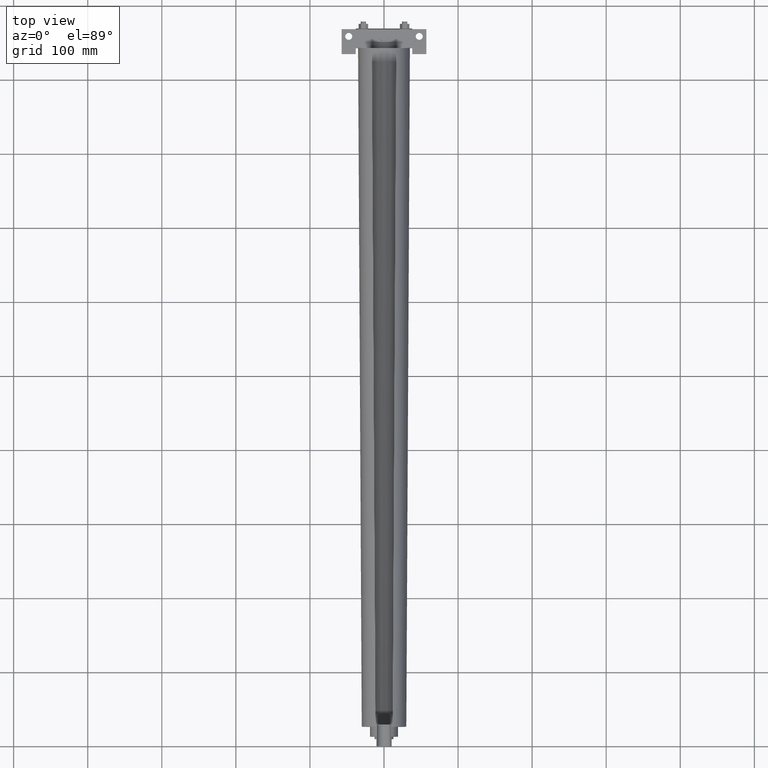
[diagram: clean part render]
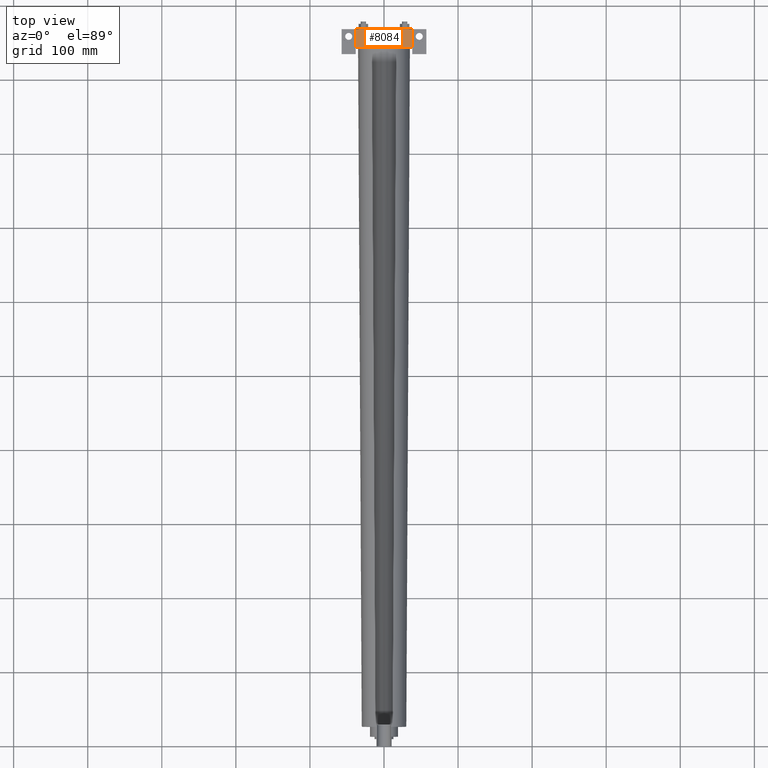
[diagram: same view with one face highlighted and labeled with its STEP entity id]
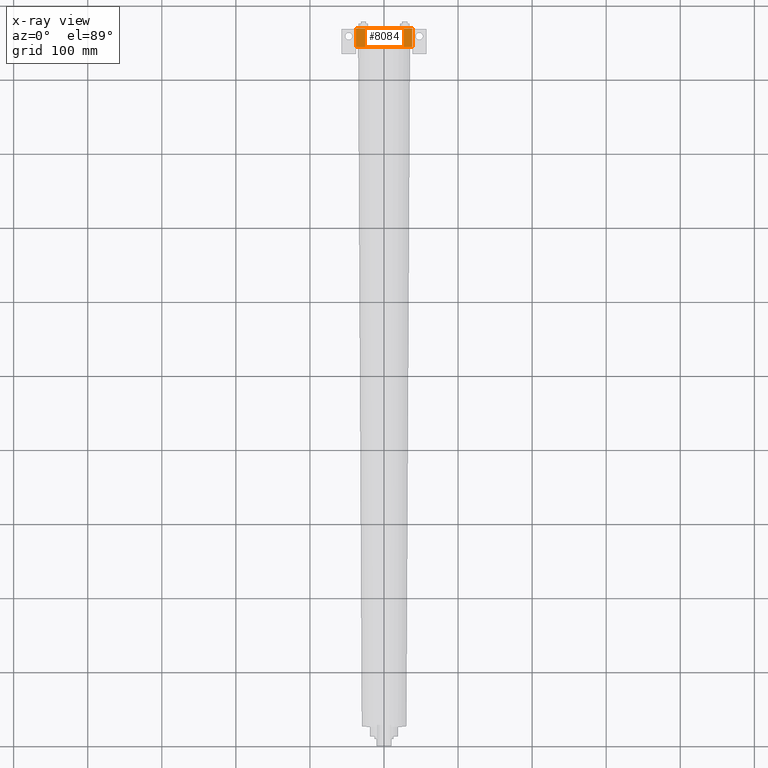
[diagram: x-ray of the same camera — body ghosted, the highlighted face saturated]
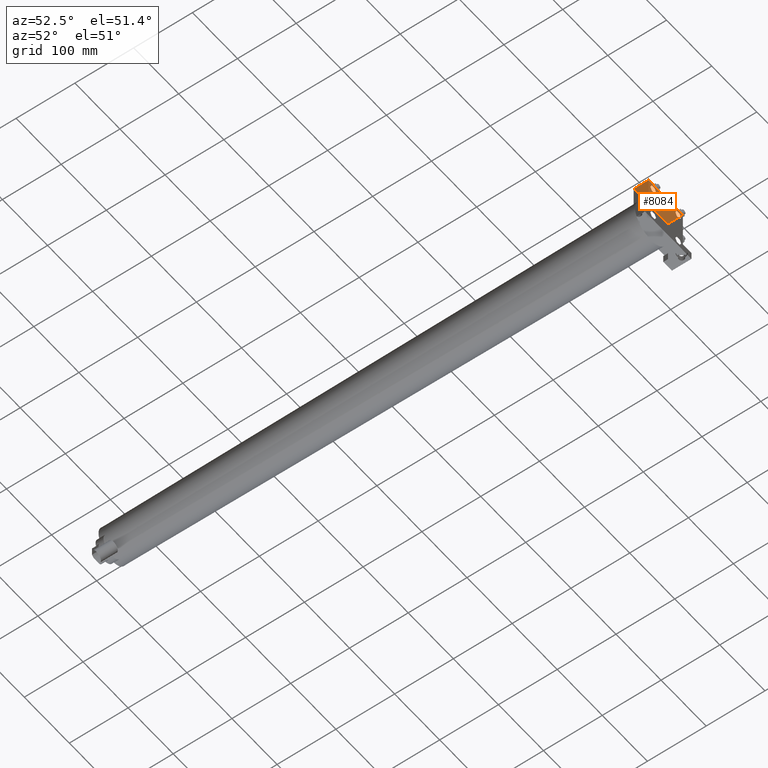
[diagram: same view with one face highlighted and labeled with its STEP entity id]
A machine part, top view. The second image highlights one B-rep face of the part: STEP entity #8084.
The next image is the same camera in x-ray: the body ghosted, the highlighted face saturated — about 0% of this face is hidden behind the body in this view.
A second angle (auxiliary view) of the same face is appended — the face is thin or edge-on in the first view.
In plain terms, the highlighted planar face has unit normal (0, 0, 1).
Its self-contained STEP definition (entity closure, byte-faithful):
#2653=EDGE_CURVE('',#2659,#2659,#2654,.T.);
#2654=CIRCLE('',#2655,6.350000000E+000);
#2655=AXIS2_PLACEMENT_3D('',#2656,#2657,#2658);
#2656=CARTESIAN_POINT('',(0.000000000E+000,9.572625000E+002,3.810000000E+001));
#2657=DIRECTION('',(0.0E+000,0.0E+000,-1.0E+000));
#2658=DIRECTION('',(-1.0E+000,0.0E+000,0.0E+000));
#2659=VERTEX_POINT('',#2660);
#2660=CARTESIAN_POINT('',(-6.350000000E+000,9.572625000E+002,3.810000000E+001));
#3125=VERTEX_POINT('',#3126);
#3126=CARTESIAN_POINT('',(-3.810000000E+001,9.683750000E+002,3.810000000E+001));
#3127=EDGE_CURVE('',#3132,#3125,#3128,.T.);
#3128=LINE('',#3129,#3130);
#3129=CARTESIAN_POINT('',(3.810000000E+001,9.683750000E+002,3.810000000E+001));
#3130=VECTOR('',#3131,1.0E+000);
#3131=DIRECTION('',(-1.0E+000,0.0E+000,0.0E+000));
#3132=VERTEX_POINT('',#3133);
#3133=CARTESIAN_POINT('',(3.810000000E+001,9.683750000E+002,3.810000000E+001));
#3144=FACE_OUTER_BOUND('',#3146,.T.);
#3145=FACE_BOUND('',#3147,.T.);
#3146=EDGE_LOOP('',(#3148));
#3147=EDGE_LOOP('',(#3149,#3150,#3151,#3152));
#3148=ORIENTED_EDGE('',*,*,#2653,.T.);
#3149=ORIENTED_EDGE('',*,*,#3153,.T.);
#3150=ORIENTED_EDGE('',*,*,#3160,.F.);
#3151=ORIENTED_EDGE('',*,*,#3167,.F.);
#3152=ORIENTED_EDGE('',*,*,#3127,.T.);
#3153=EDGE_CURVE('',#3125,#3158,#3154,.T.);
#3154=LINE('',#3155,#3156);
#3155=CARTESIAN_POINT('',(-3.810000000E+001,9.683750000E+002,3.810000000E+001));
#3156=VECTOR('',#3157,1.0E+000);
#3157=DIRECTION('',(0.0E+000,-1.0E+000,0.0E+000));
#3158=VERTEX_POINT('',#3159);
#3159=CARTESIAN_POINT('',(-3.810000000E+001,9.429750000E+002,3.810000000E+001));
#3160=EDGE_CURVE('',#3165,#3158,#3161,.T.);
#3161=LINE('',#3162,#3163);
#3162=CARTESIAN_POINT('',(3.810000000E+001,9.429750000E+002,3.810000000E+001));
#3163=VECTOR('',#3164,1.0E+000);
#3164=DIRECTION('',(-1.0E+000,0.0E+000,0.0E+000));
#3165=VERTEX_POINT('',#3166);
#3166=CARTESIAN_POINT('',(3.810000000E+001,9.429750000E+002,3.810000000E+001));
#3167=EDGE_CURVE('',#3132,#3165,#3168,.T.);
#3168=LINE('',#3169,#3170);
#3169=CARTESIAN_POINT('',(3.810000000E+001,9.683750000E+002,3.810000000E+001));
#3170=VECTOR('',#3171,1.0E+000);
#3171=DIRECTION('',(0.0E+000,-1.0E+000,0.0E+000));
#3172=PLANE('',#3173);
#3173=AXIS2_PLACEMENT_3D('',#3174,#3175,#3176);
#3174=CARTESIAN_POINT('',(3.810000000E+001,9.683750000E+002,3.810000000E+001));
#3175=DIRECTION('',(0.0E+000,0.0E+000,1.0E+000));
#3176=DIRECTION('',(1.0E+000,0.0E+000,0.0E+000));
#8084=ADVANCED_FACE('',(#3144,#3145),#3172,.T.);